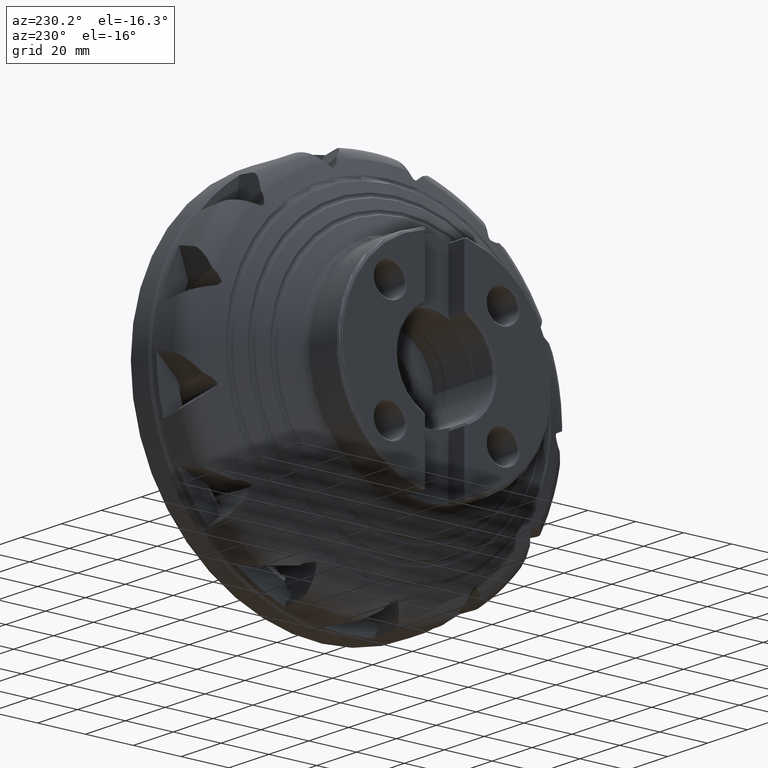
[diagram: clean part render]
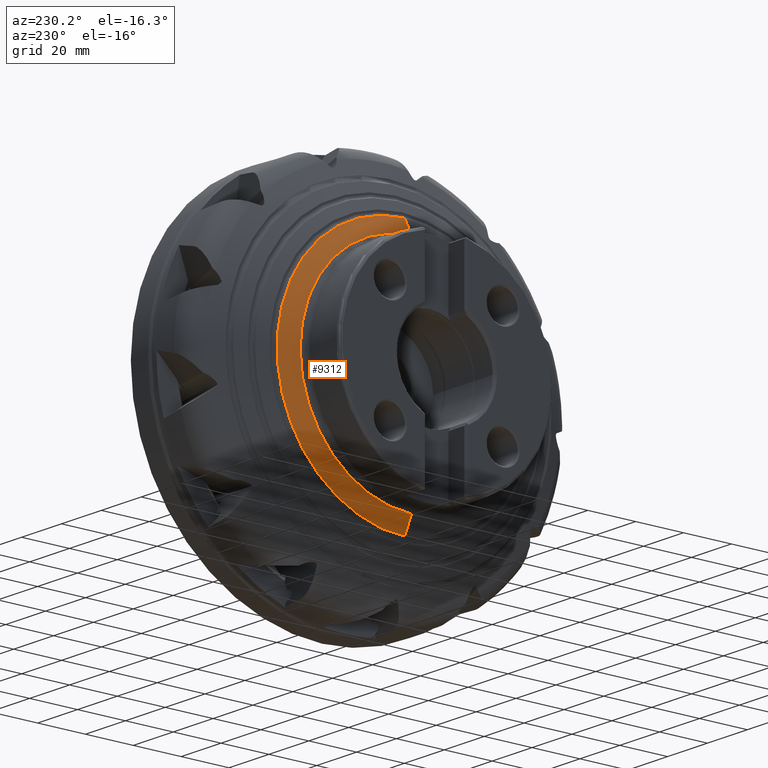
[diagram: same view with one face highlighted and labeled with its STEP entity id]
A machine part, auxiliary view. The second image highlights one B-rep face of the part: STEP entity #9312.
In plain terms, the highlighted conical surface has half-angle 61.911 deg.
Its self-contained STEP definition (entity closure, byte-faithful):
#3499 = CARTESIAN_POINT ( 'NONE',  ( -43.60333809972561900, 0.0000000000000000000, -46.58749131484577800 ) ) ;
#5960 = VERTEX_POINT ( 'NONE', #15144 ) ;
#6807 = CARTESIAN_POINT ( 'NONE',  ( -40.04363703887911900, 6.528243669728324900E-015, 53.25741502797335200 ) ) ;
#6824 = CARTESIAN_POINT ( 'NONE',  ( -40.04363703887911900, 0.0000000000000000000, -53.25741502797335200 ) ) ;
#9312 = ADVANCED_FACE ( 'NONE', ( #17991 ), #17990, .T. ) ;
#9372 = EDGE_CURVE ( 'NONE', #13186, #13169, #18099, .T. ) ;
#9378 = EDGE_CURVE ( 'NONE', #5960, #13169, #18101, .T. ) ;
#9379 = EDGE_CURVE ( 'NONE', #10060, #5960, #18108, .T. ) ;
#9380 = EDGE_CURVE ( 'NONE', #10060, #13186, #18093, .T. ) ;
#10060 = VERTEX_POINT ( 'NONE', #3499 ) ;
#11762 = ORIENTED_EDGE ( 'NONE', *, *, #9379, .T. ) ;
#11922 = EDGE_LOOP ( 'NONE', ( #11762, #12376, #12643, #12539 ) ) ;
#12376 = ORIENTED_EDGE ( 'NONE', *, *, #9378, .T. ) ;
#12539 = ORIENTED_EDGE ( 'NONE', *, *, #9380, .F. ) ;
#12643 = ORIENTED_EDGE ( 'NONE', *, *, #9372, .F. ) ;
#13169 = VERTEX_POINT ( 'NONE', #6807 ) ;
#13186 = VERTEX_POINT ( 'NONE', #6824 ) ;
#15144 = CARTESIAN_POINT ( 'NONE',  ( -43.60333809972561900, 6.113737248195035300E-015, 46.58749131484577800 ) ) ;
#16938 = AXIS2_PLACEMENT_3D ( 'NONE', #20447, #20446, #20374 ) ;
#16971 = AXIS2_PLACEMENT_3D ( 'NONE', #20603, #20604, #20605 ) ;
#16977 = AXIS2_PLACEMENT_3D ( 'NONE', #20623, #20624, #20625 ) ;
#17990 = CONICAL_SURFACE ( 'NONE', #16938, 53.25741502797335200, 1.080557920633190100 ) ;
#17991 = FACE_OUTER_BOUND ( 'NONE', #11922, .T. ) ;
#18093 = LINE ( 'NONE', #20626, #18096 ) ;
#18096 = VECTOR ( 'NONE', #20627, 1000.000000000000200 ) ;
#18099 = CIRCLE ( 'NONE', #16971, 53.25741502797335200 ) ;
#18101 = LINE ( 'NONE', #20621, #18104 ) ;
#18104 = VECTOR ( 'NONE', #20622, 1000.000000000000200 ) ;
#18108 = CIRCLE ( 'NONE', #16977, 46.58749131484577800 ) ;
#20374 = DIRECTION ( 'NONE',  ( 0.0000000000000000000, 0.0000000000000000000, -1.000000000000000000 ) ) ;
#20446 = DIRECTION ( 'NONE',  ( 1.000000000000000000, -0.0000000000000000000, -0.0000000000000000000 ) ) ;
#20447 = CARTESIAN_POINT ( 'NONE',  ( -40.04363703887911900, 0.0000000000000000000, 0.0000000000000000000 ) ) ;
#20603 = CARTESIAN_POINT ( 'NONE',  ( -40.04363703887911900, 0.0000000000000000000, 0.0000000000000000000 ) ) ;
#20604 = DIRECTION ( 'NONE',  ( 1.000000000000000000, -0.0000000000000000000, -0.0000000000000000000 ) ) ;
#20605 = DIRECTION ( 'NONE',  ( 0.0000000000000000000, 0.0000000000000000000, -1.000000000000000000 ) ) ;
#20621 = CARTESIAN_POINT ( 'NONE',  ( -40.04363703887911900, 6.522152284486970700E-015, 53.25741502797335200 ) ) ;
#20622 = DIRECTION ( 'NONE',  ( 0.4708362283847352100, 1.080408674865419300E-016, 0.8822206334247898500 ) ) ;
#20623 = CARTESIAN_POINT ( 'NONE',  ( -43.60333809972561900, 0.0000000000000000000, 0.0000000000000000000 ) ) ;
#20624 = DIRECTION ( 'NONE',  ( 1.000000000000000000, -0.0000000000000000000, -0.0000000000000000000 ) ) ;
#20625 = DIRECTION ( 'NONE',  ( 0.0000000000000000000, 0.0000000000000000000, -1.000000000000000000 ) ) ;
#20626 = CARTESIAN_POINT ( 'NONE',  ( -40.04363703887911900, 0.0000000000000000000, -53.25741502797335200 ) ) ;
#20627 = DIRECTION ( 'NONE',  ( 0.4708362283847352100, 0.0000000000000000000, -0.8822206334247898500 ) ) ;